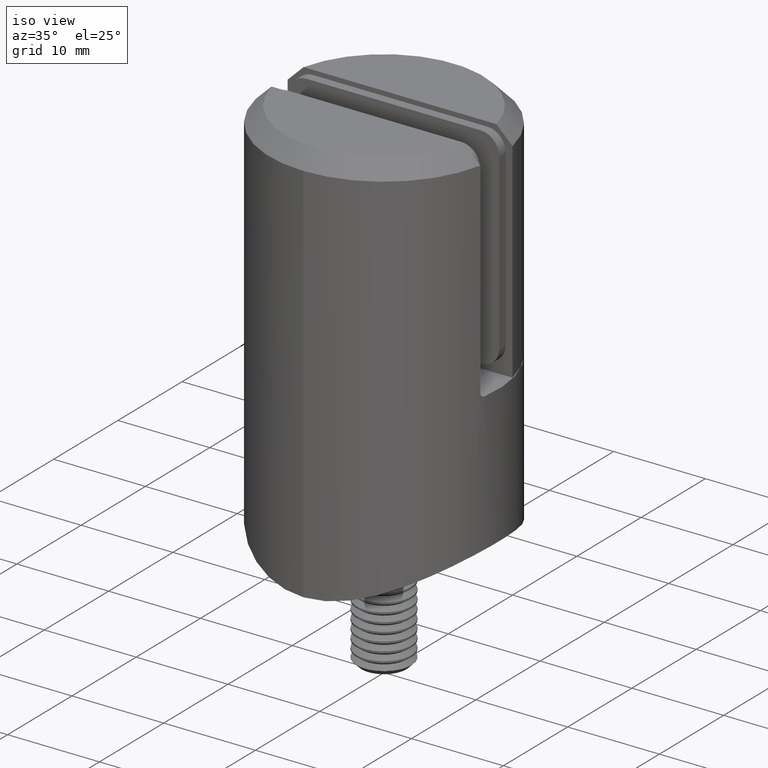
[diagram: clean part render]
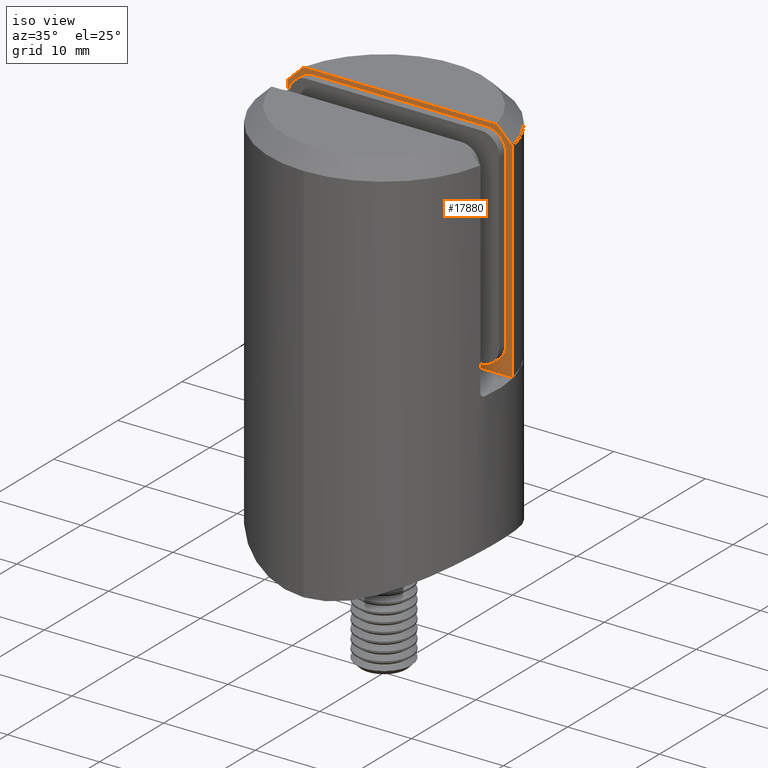
[diagram: same view with one face highlighted and labeled with its STEP entity id]
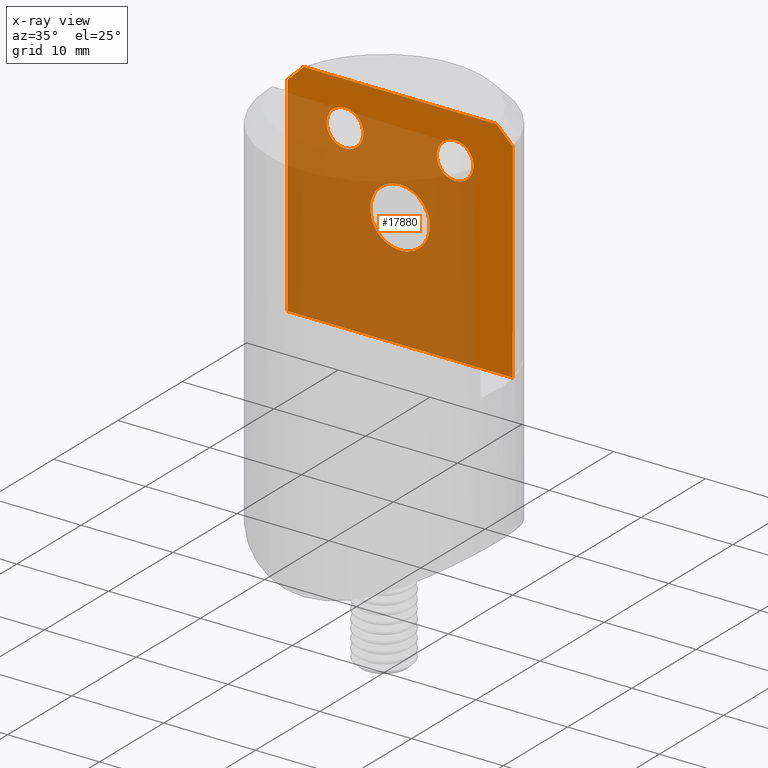
[diagram: x-ray of the same camera — body ghosted, the highlighted face saturated]
A machine part, iso view. The second image highlights one B-rep face of the part: STEP entity #17880.
The next image is the same camera in x-ray: the body ghosted, the highlighted face saturated — about 71% of this face is hidden behind the body in this view.
In plain terms, the highlighted planar face has unit normal (0, 1, 0).
Its self-contained STEP definition (entity closure, byte-faithful):
#439 = B_SPLINE_CURVE_WITH_KNOTS ( 'NONE', 3,
 ( #18392, #4552, #17371, #21656 ),
 .UNSPECIFIED., .F., .F.,
 ( 4, 4 ),
 ( 0.000000000000000000, 0.002433172722957555739 ),
 .UNSPECIFIED. ) ;
#841 = DIRECTION ( 'NONE',  ( 0.000000000000000000, 1.000000000000000000, 0.000000000000000000 ) ) ;
#883 = CARTESIAN_POINT ( 'NONE',  ( -10.50666455160723167, 2.500000000000000444, 24.50000000000000000 ) ) ;
#1336 = EDGE_LOOP ( 'NONE', ( #3414 ) ) ;
#1497 = ORIENTED_EDGE ( 'NONE', *, *, #9238, .F. ) ;
#1753 = VECTOR ( 'NONE', #5108, 1000.000000000000000 ) ;
#1837 = VECTOR ( 'NONE', #14067, 1000.000000000000000 ) ;
#2162 = VERTEX_POINT ( 'NONE', #16907 ) ;
#2273 = EDGE_CURVE ( 'NONE', #17915, #19522, #19577, .T. ) ;
#2828 = CARTESIAN_POINT ( 'NONE',  ( 1.530808498934191521E-15, 2.500000000000000444, 15.75000000000000000 ) ) ;
#3022 = CIRCLE ( 'NONE', #18564, 2.000000000000001776 ) ;
#3414 = ORIENTED_EDGE ( 'NONE', *, *, #6013, .T. ) ;
#3453 = VECTOR ( 'NONE', #20697, 1000.000000000000000 ) ;
#3494 = FACE_BOUND ( 'NONE', #7801, .T. ) ;
#3521 = EDGE_CURVE ( 'NONE', #17915, #21497, #439, .T. ) ;
#3681 = CARTESIAN_POINT ( 'NONE',  ( 10.50666455160723345, 2.500000000000000444, 24.50000000000000000 ) ) ;
#3767 = ORIENTED_EDGE ( 'NONE', *, *, #17112, .F. ) ;
#3918 = ORIENTED_EDGE ( 'NONE', *, *, #5456, .T. ) ;
#4229 = CARTESIAN_POINT ( 'NONE',  ( -11.66812187511647458, 2.500000000000000444, 23.36762205974326534 ) ) ;
#4348 = DIRECTION ( 'NONE',  ( 0.000000000000000000, 0.000000000000000000, 1.000000000000000000 ) ) ;
#4552 = CARTESIAN_POINT ( 'NONE',  ( 11.66812187511647458, 2.500000000000000444, 23.36762205974326534 ) ) ;
#4590 = CARTESIAN_POINT ( 'NONE',  ( 1.530808498934191521E-15, 2.500000000000000444, 12.50000000000000000 ) ) ;
#4853 = LINE ( 'NONE', #12373, #1753 ) ;
#5108 = DIRECTION ( 'NONE',  ( 1.000000000000000000, 0.000000000000000000, 0.000000000000000000 ) ) ;
#5373 = PLANE ( 'NONE',  #6784 ) ;
#5387 = CARTESIAN_POINT ( 'NONE',  ( -6.000000000000002665, 2.500000000000000444, 19.69999999999999929 ) ) ;
#5456 = EDGE_CURVE ( 'NONE', #9541, #2162, #14806, .T. ) ;
#6013 = EDGE_CURVE ( 'NONE', #6120, #6120, #21781, .T. ) ;
#6120 = VERTEX_POINT ( 'NONE', #2828 ) ;
#6392 = VERTEX_POINT ( 'NONE', #18995 ) ;
#6638 = CARTESIAN_POINT ( 'NONE',  ( -10.50666455160723167, 2.500000000000000444, 24.50000000000000000 ) ) ;
#6784 = AXIS2_PLACEMENT_3D ( 'NONE', #15982, #7248, #17794 ) ;
#6879 = AXIS2_PLACEMENT_3D ( 'NONE', #16325, #20099, #9268 ) ;
#7021 = CARTESIAN_POINT ( 'NONE',  ( -12.24744871391589029, 2.500000000000000444, 24.50000000000000000 ) ) ;
#7248 = DIRECTION ( 'NONE',  ( 0.000000000000000000, 1.000000000000000000, 0.000000000000000000 ) ) ;
#7744 = CARTESIAN_POINT ( 'NONE',  ( -12.24744871391589029, 2.500000000000000444, 22.79999999999999361 ) ) ;
#7751 = VERTEX_POINT ( 'NONE', #9813 ) ;
#7801 = EDGE_LOOP ( 'NONE', ( #1497 ) ) ;
#7897 = ORIENTED_EDGE ( 'NONE', *, *, #2273, .F. ) ;
#8601 = ORIENTED_EDGE ( 'NONE', *, *, #3521, .T. ) ;
#9238 = EDGE_CURVE ( 'NONE', #7751, #7751, #3022, .T. ) ;
#9268 = DIRECTION ( 'NONE',  ( 0.000000000000000000, 0.000000000000000000, -1.000000000000000000 ) ) ;
#9324 = FACE_BOUND ( 'NONE', #1336, .T. ) ;
#9460 = CARTESIAN_POINT ( 'NONE',  ( 12.24744871391589029, 2.500000000000000444, 24.50000000000000000 ) ) ;
#9541 = VERTEX_POINT ( 'NONE', #15746 ) ;
#9813 = CARTESIAN_POINT ( 'NONE',  ( -6.000000000000002665, 2.500000000000000444, 17.69999999999999574 ) ) ;
#10046 = EDGE_LOOP ( 'NONE', ( #3767, #18958, #3918, #20488, #7897, #8601 ) ) ;
#10175 = FACE_BOUND ( 'NONE', #21286, .T. ) ;
#10854 = VERTEX_POINT ( 'NONE', #6638 ) ;
#10877 = CARTESIAN_POINT ( 'NONE',  ( 12.24744871391589029, 2.500000000000000444, 0.000000000000000000 ) ) ;
#11157 = ORIENTED_EDGE ( 'NONE', *, *, #15268, .F. ) ;
#11989 = EDGE_CURVE ( 'NONE', #10854, #9541, #17983, .T. ) ;
#12094 = CARTESIAN_POINT ( 'NONE',  ( -12.24744871391589029, 2.500000000000000444, 24.50000000000000000 ) ) ;
#12107 = VECTOR ( 'NONE', #15760, 1000.000000000000000 ) ;
#12373 = CARTESIAN_POINT ( 'NONE',  ( -12.24744871391589029, 2.500000000000000444, 0.000000000000000000 ) ) ;
#14015 = DIRECTION ( 'NONE',  ( 0.000000000000000000, 0.000000000000000000, -1.000000000000000000 ) ) ;
#14067 = DIRECTION ( 'NONE',  ( 1.000000000000000000, 0.000000000000000000, 0.000000000000000000 ) ) ;
#14287 = AXIS2_PLACEMENT_3D ( 'NONE', #4590, #841, #4348 ) ;
#14806 = LINE ( 'NONE', #7021, #12107 ) ;
#14878 = CARTESIAN_POINT ( 'NONE',  ( -11.08800938267508052, 2.500000000000000888, 23.93444489547771425 ) ) ;
#15268 = EDGE_CURVE ( 'NONE', #6392, #6392, #17253, .T. ) ;
#15746 = CARTESIAN_POINT ( 'NONE',  ( -12.24744871391589029, 2.500000000000000444, 22.79999999999999361 ) ) ;
#15760 = DIRECTION ( 'NONE',  ( -0.000000000000000000, -0.000000000000000000, -1.000000000000000000 ) ) ;
#15982 = CARTESIAN_POINT ( 'NONE',  ( -12.24744871391589029, 2.500000000000000444, 24.50000000000000000 ) ) ;
#16055 = CARTESIAN_POINT ( 'NONE',  ( 12.24744871391589029, 2.500000000000000444, 22.79999999999999361 ) ) ;
#16268 = LINE ( 'NONE', #12094, #1837 ) ;
#16325 = CARTESIAN_POINT ( 'NONE',  ( 5.999999999999997335, 2.500000000000000444, 19.69999999999999929 ) ) ;
#16907 = CARTESIAN_POINT ( 'NONE',  ( -12.24744871391589029, 2.500000000000000444, 0.000000000000000000 ) ) ;
#17112 = EDGE_CURVE ( 'NONE', #10854, #21497, #16268, .T. ) ;
#17253 = CIRCLE ( 'NONE', #6879, 2.000000000000005329 ) ;
#17371 = CARTESIAN_POINT ( 'NONE',  ( 11.08800938267508052, 2.500000000000000444, 23.93444489547771425 ) ) ;
#17794 = DIRECTION ( 'NONE',  ( 0.000000000000000000, -0.000000000000000000, 1.000000000000000000 ) ) ;
#17808 = DIRECTION ( 'NONE',  ( 0.000000000000000000, -1.000000000000000000, 0.000000000000000000 ) ) ;
#17880 = ADVANCED_FACE ( 'NONE', ( #9324, #10175, #3494, #23005 ), #5373, .F. ) ;
#17915 = VERTEX_POINT ( 'NONE', #16055 ) ;
#17983 = B_SPLINE_CURVE_WITH_KNOTS ( 'NONE', 3,
 ( #883, #14878, #4229, #7744 ),
 .UNSPECIFIED., .F., .F.,
 ( 4, 4 ),
 ( 0.000000000000000000, 0.002433172722957555739 ),
 .UNSPECIFIED. ) ;
#18392 = CARTESIAN_POINT ( 'NONE',  ( 12.24744871391589029, 2.500000000000000444, 22.79999999999999361 ) ) ;
#18564 = AXIS2_PLACEMENT_3D ( 'NONE', #5387, #17808, #14015 ) ;
#18958 = ORIENTED_EDGE ( 'NONE', *, *, #11989, .T. ) ;
#18995 = CARTESIAN_POINT ( 'NONE',  ( 5.999999999999997335, 2.500000000000000444, 17.69999999999999218 ) ) ;
#19522 = VERTEX_POINT ( 'NONE', #10877 ) ;
#19577 = LINE ( 'NONE', #9460, #3453 ) ;
#20099 = DIRECTION ( 'NONE',  ( 0.000000000000000000, -1.000000000000000000, 0.000000000000000000 ) ) ;
#20488 = ORIENTED_EDGE ( 'NONE', *, *, #21373, .T. ) ;
#20697 = DIRECTION ( 'NONE',  ( -0.000000000000000000, -0.000000000000000000, -1.000000000000000000 ) ) ;
#21286 = EDGE_LOOP ( 'NONE', ( #11157 ) ) ;
#21373 = EDGE_CURVE ( 'NONE', #2162, #19522, #4853, .T. ) ;
#21497 = VERTEX_POINT ( 'NONE', #3681 ) ;
#21656 = CARTESIAN_POINT ( 'NONE',  ( 10.50666455160723345, 2.500000000000000444, 24.50000000000000000 ) ) ;
#21781 = CIRCLE ( 'NONE', #14287, 3.249999999999999556 ) ;
#23005 = FACE_OUTER_BOUND ( 'NONE', #10046, .T. ) ;